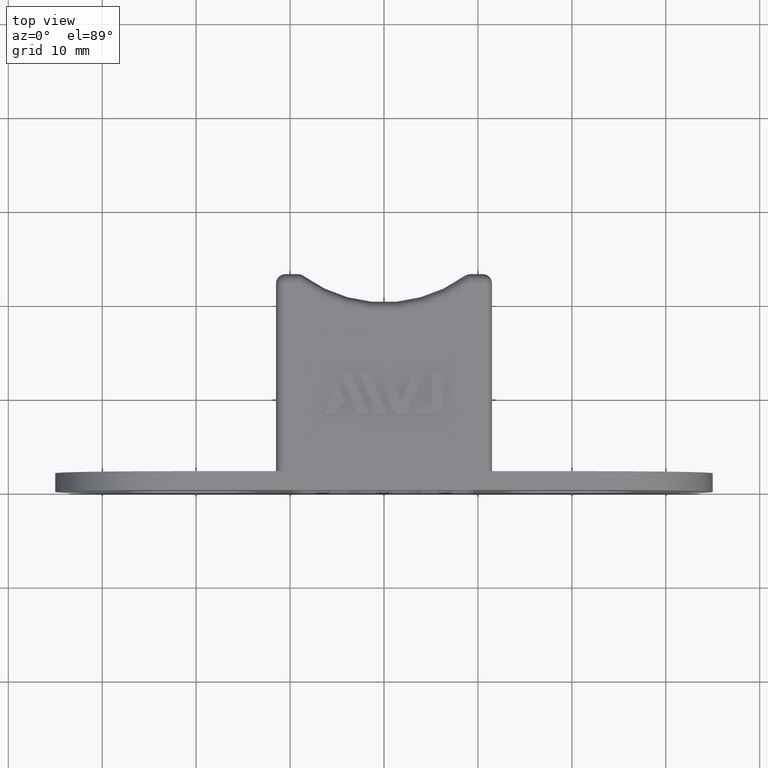
[diagram: clean part render]
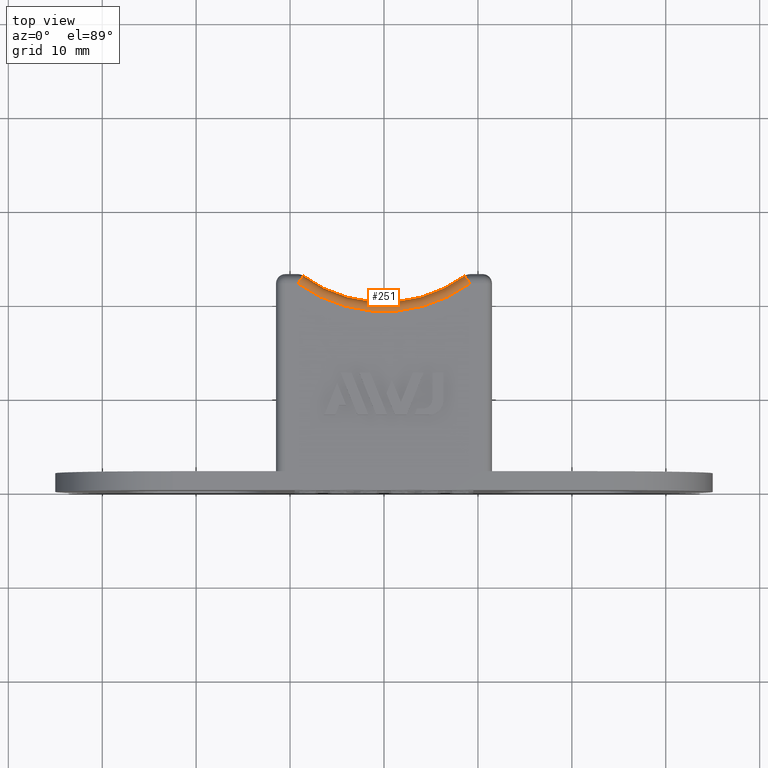
[diagram: same view with one face highlighted and labeled with its STEP entity id]
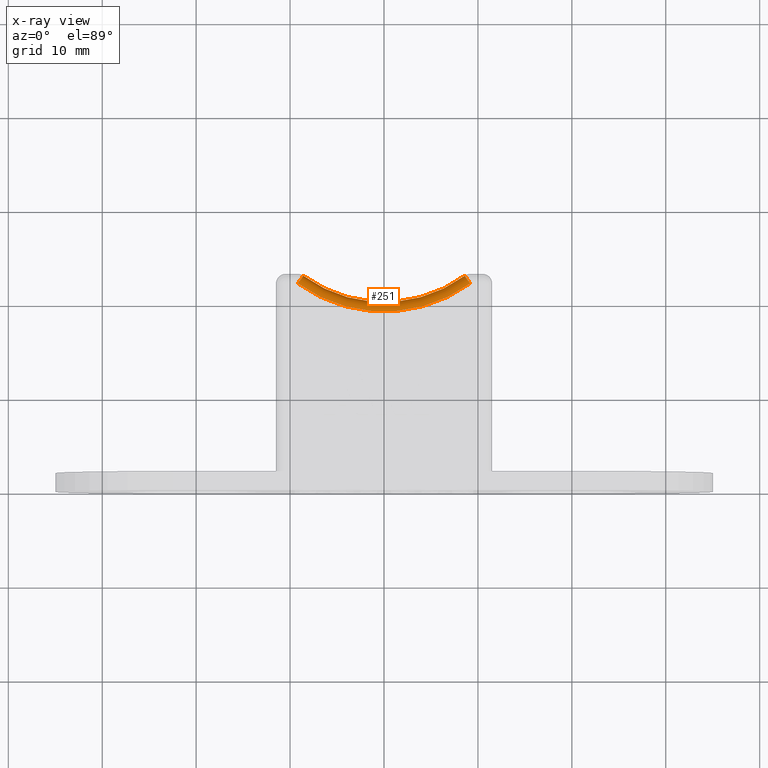
[diagram: x-ray of the same camera — body ghosted, the highlighted face saturated]
A machine part, top view. The second image highlights one B-rep face of the part: STEP entity #251.
The next image is the same camera in x-ray: the body ghosted, the highlighted face saturated — about 0% of this face is hidden behind the body in this view.
In plain terms, the highlighted toroidal blend (fillet) surface has major radius 15.54 mm and minor (blend) radius 1 mm.
Its self-contained STEP definition (entity closure, byte-faithful):
#251 = ADVANCED_FACE( '', ( #640 ), #641, .T. );
#640 = FACE_OUTER_BOUND( '', #1038, .T. );
#641 = TOROIDAL_SURFACE( '', #1039, 15.5400000000000, 1.00000000000000 );
#1038 = EDGE_LOOP( '', ( #2468, #2469, #2470, #2471 ) );
#1039 = AXIS2_PLACEMENT_3D( '', #2472, #2473, #2474 );
#2468 = ORIENTED_EDGE( '', *, *, #2994, .T. );
#2469 = ORIENTED_EDGE( '', *, *, #2771, .F. );
#2470 = ORIENTED_EDGE( '', *, *, #2998, .F. );
#2471 = ORIENTED_EDGE( '', *, *, #2551, .F. );
#2472 = CARTESIAN_POINT( '', ( -1.73472347597681E-015, 34.5400000000000, -1.00000000000000 ) );
#2473 = DIRECTION( '', ( 0.000000000000000, 0.000000000000000, -1.00000000000000 ) );
#2474 = DIRECTION( '', ( -1.00000000000000, 0.000000000000000, 0.000000000000000 ) );
#2551 = EDGE_CURVE( '', #3024, #3025, #3026, .T. );
#2771 = EDGE_CURVE( '', #3437, #3439, #3440, .F. );
#2994 = EDGE_CURVE( '', #3024, #3439, #3756, .F. );
#2998 = EDGE_CURVE( '', #3025, #3437, #3760, .T. );
#3024 = VERTEX_POINT( '', #3797 );
#3025 = VERTEX_POINT( '', #3798 );
#3026 = CIRCLE( '', #3799, 15.5400000000000 );
#3437 = VERTEX_POINT( '', #4374 );
#3439 = VERTEX_POINT( '', #4377 );
#3440 = CIRCLE( '', #4378, 14.5400000000000 );
#3756 = CIRCLE( '', #4866, 1.00000000000000 );
#3760 = CIRCLE( '', #4870, 1.00000000000000 );
#3797 = CARTESIAN_POINT( '', ( 9.17823512446705, 22.0000000000000, 0.000000000000000 ) );
#3798 = CARTESIAN_POINT( '', ( -9.17823512446706, 22.0000000000000, 0.000000000000000 ) );
#3799 = AXIS2_PLACEMENT_3D( '', #4885, #4886, #4887 );
#4374 = CARTESIAN_POINT( '', ( -8.58761510358754, 22.8069498069498, -1.00000000000000 ) );
#4377 = CARTESIAN_POINT( '', ( 8.58761510358754, 22.8069498069498, -1.00000000000000 ) );
#4378 = AXIS2_PLACEMENT_3D( '', #5215, #5216, #5217 );
#4866 = AXIS2_PLACEMENT_3D( '', #5540, #5541, #5542 );
#4870 = AXIS2_PLACEMENT_3D( '', #5552, #5553, #5554 );
#4885 = CARTESIAN_POINT( '', ( -1.73472347597681E-015, 34.5400000000000, 0.000000000000000 ) );
#4886 = DIRECTION( '', ( 0.000000000000000, 0.000000000000000, -1.00000000000000 ) );
#4887 = DIRECTION( '', ( -1.00000000000000, 0.000000000000000, 0.000000000000000 ) );
#5215 = CARTESIAN_POINT( '', ( -1.73472347597681E-015, 34.5400000000000, -1.00000000000000 ) );
#5216 = DIRECTION( '', ( 0.000000000000000, 0.000000000000000, -1.00000000000000 ) );
#5217 = DIRECTION( '', ( -1.00000000000000, 0.000000000000000, 0.000000000000000 ) );
#5540 = CARTESIAN_POINT( '', ( 9.17823512446701, 22.0000000000000, -1.00000000000000 ) );
#5541 = DIRECTION( '', ( 0.806949806949807, 0.590620020879474, -5.44625552476987E-014 ) );
#5542 = DIRECTION( '', ( -0.590620020879473, 0.806949806949807, 0.000000000000000 ) );
#5552 = CARTESIAN_POINT( '', ( -9.17823512446706, 22.0000000000000, -1.00000000000000 ) );
#5553 = DIRECTION( '', ( -0.806949806949774, 0.590620020879519, 0.000000000000000 ) );
#5554 = DIRECTION( '', ( -0.590620020879519, -0.806949806949774, 0.000000000000000 ) );